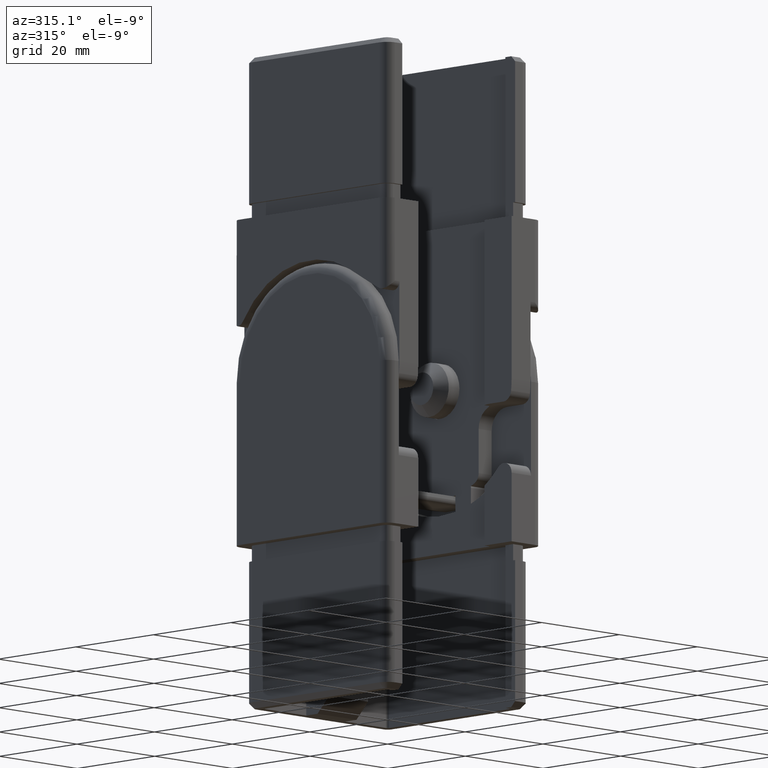
[diagram: clean part render]
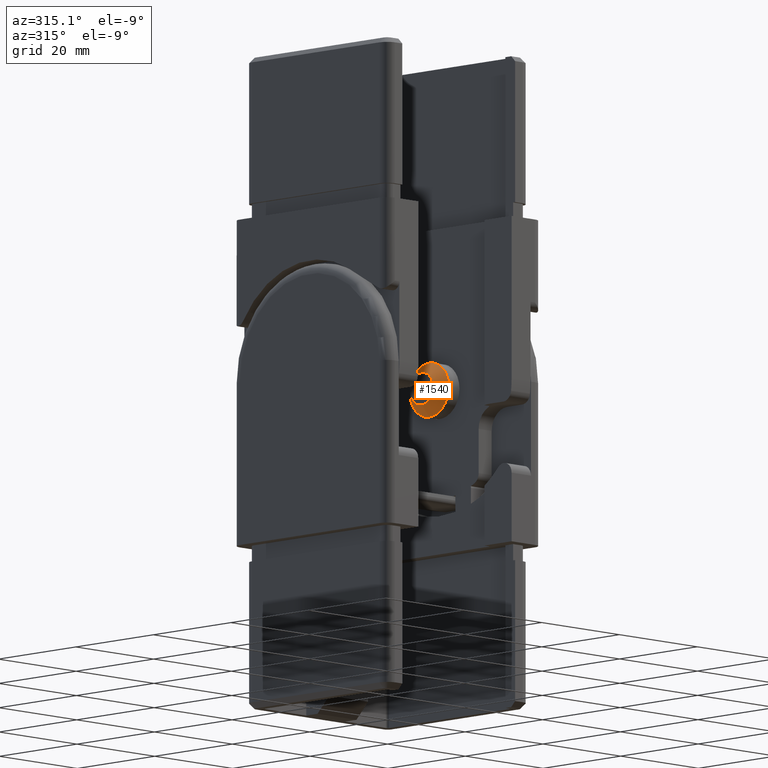
[diagram: same view with one face highlighted and labeled with its STEP entity id]
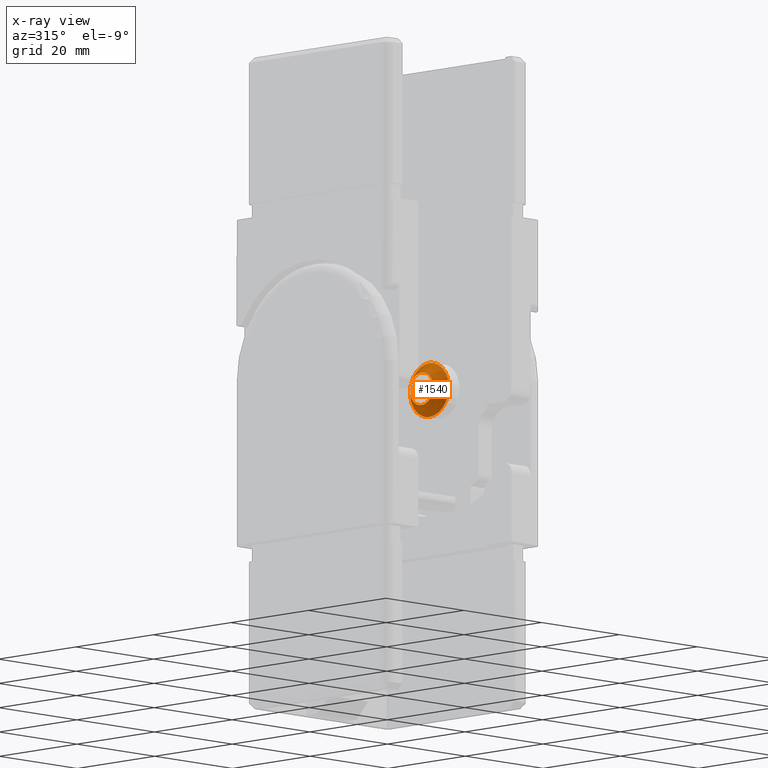
[diagram: x-ray of the same camera — body ghosted, the highlighted face saturated]
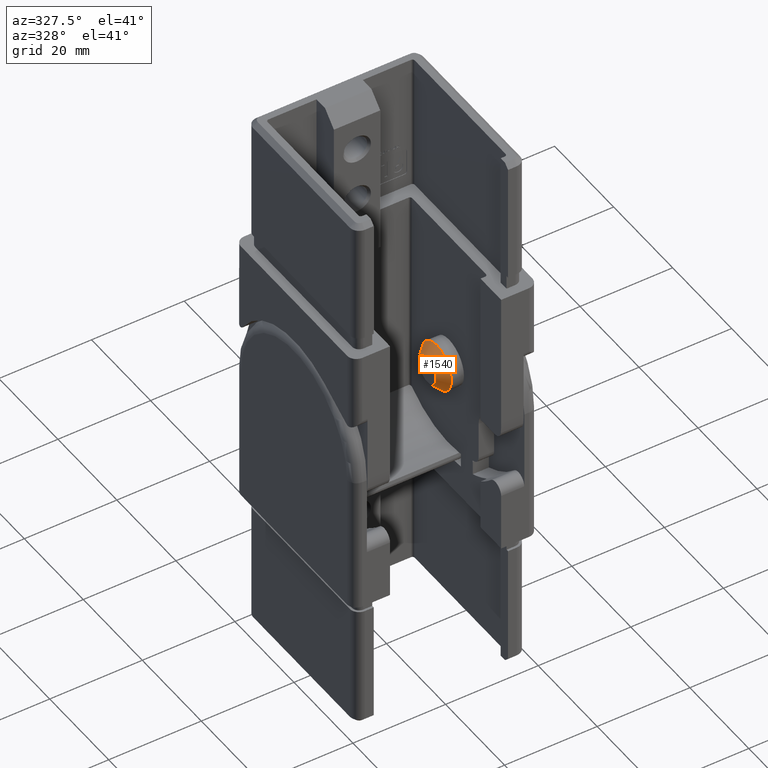
[diagram: same view with one face highlighted and labeled with its STEP entity id]
A machine part, auxiliary view. The second image highlights one B-rep face of the part: STEP entity #1540.
The next image is the same camera in x-ray: the body ghosted, the highlighted face saturated — about 1% of this face is hidden behind the body in this view.
A second angle (auxiliary view) of the same face is appended — the face is thin or edge-on in the first view.
In plain terms, the highlighted conical surface has half-angle 45 deg.
Its self-contained STEP definition (entity closure, byte-faithful):
#1540 = ADVANCED_FACE ( 'NONE', ( #10926, #24967 ), #7866, .T. ) ;
#1968 = CIRCLE ( 'NONE', #23829, 5.000000000000000900 ) ;
#3149 = AXIS2_PLACEMENT_3D ( 'NONE', #21198, #19253, #7532 ) ;
#3404 = CARTESIAN_POINT ( 'NONE',  ( -10.79999999999999900, 0.0000000000000000000, -30.00000000000000400 ) ) ;
#3740 = DIRECTION ( 'NONE',  ( -1.000000000000000000, 0.0000000000000000000, 0.0000000000000000000 ) ) ;
#3819 = AXIS2_PLACEMENT_3D ( 'NONE', #13155, #24669, #24495 ) ;
#6307 = VERTEX_POINT ( 'NONE', #11699 ) ;
#7532 = DIRECTION ( 'NONE',  ( 0.0000000000000000000, 0.0000000000000000000, 1.000000000000000000 ) ) ;
#7866 = CONICAL_SURFACE ( 'NONE', #3149, 5.000000000000000900, 0.7853981633974480600 ) ;
#9186 = EDGE_CURVE ( 'NONE', #15484, #15484, #20980, .T. ) ;
#9559 = DIRECTION ( 'NONE',  ( 0.0000000000000000000, 0.0000000000000000000, 1.000000000000000000 ) ) ;
#9985 = CARTESIAN_POINT ( 'NONE',  ( -8.799999999999990100, 0.0000000000000000000, -27.00000000000001100 ) ) ;
#10926 = FACE_BOUND ( 'NONE', #20495, .T. ) ;
#11465 = EDGE_LOOP ( 'NONE', ( #23152 ) ) ;
#11699 = CARTESIAN_POINT ( 'NONE',  ( -10.79999999999999900, 0.0000000000000000000, -25.00000000000000000 ) ) ;
#12474 = EDGE_CURVE ( 'NONE', #6307, #6307, #1968, .T. ) ;
#13155 = CARTESIAN_POINT ( 'NONE',  ( -8.799999999999990100, 0.0000000000000000000, -30.00000000000000400 ) ) ;
#15484 = VERTEX_POINT ( 'NONE', #9985 ) ;
#16622 = ORIENTED_EDGE ( 'NONE', *, *, #9186, .F. ) ;
#19253 = DIRECTION ( 'NONE',  ( -1.000000000000000000, 0.0000000000000000000, 0.0000000000000000000 ) ) ;
#20495 = EDGE_LOOP ( 'NONE', ( #16622 ) ) ;
#20980 = CIRCLE ( 'NONE', #3819, 2.999999999999992500 ) ;
#21198 = CARTESIAN_POINT ( 'NONE',  ( -10.79999999999999900, 0.0000000000000000000, -30.00000000000000400 ) ) ;
#23152 = ORIENTED_EDGE ( 'NONE', *, *, #12474, .F. ) ;
#23829 = AXIS2_PLACEMENT_3D ( 'NONE', #3404, #3740, #9559 ) ;
#24495 = DIRECTION ( 'NONE',  ( 0.0000000000000000000, 0.0000000000000000000, 1.000000000000000000 ) ) ;
#24669 = DIRECTION ( 'NONE',  ( 1.000000000000000000, -0.0000000000000000000, -0.0000000000000000000 ) ) ;
#24967 = FACE_OUTER_BOUND ( 'NONE', #11465, .T. ) ;